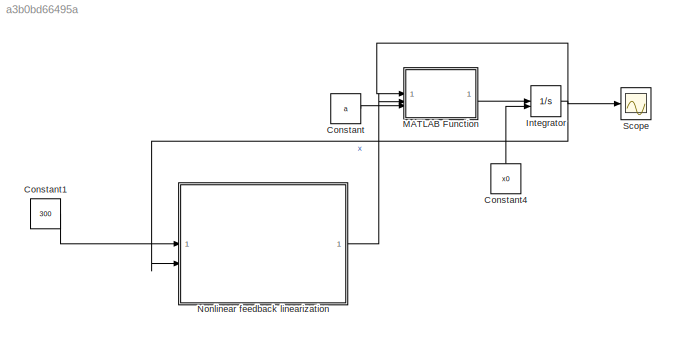
MODEL slx_a3b0bd66495a
KIND model
CONFIG AbsTol = auto
CONFIG EnableMultiTasking = off
CONFIG FixedStep = 0.001
CONFIG MaxStep = auto
CONFIG MinStep = auto
CONFIG RelTol = 1e-3
CONFIG SampleTimeConstraint = Unconstrained
CONFIG SolverName = FixedStepAuto
CONFIG StartTime = 0.0
CONFIG StopTime = 15
BLOCK [Constant] Constant
  Value = a
BLOCK [Constant] Constant1
  Value = 300
BLOCK [Constant] Constant4
  NameLocation = right
  Value = x0
BLOCK [Integrator] Integrator
  InitialConditionSource = external
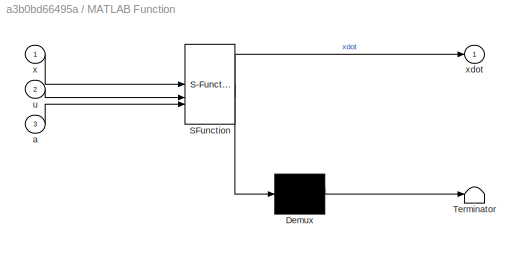
BLOCK [SubSystem] MATLAB Function
  ErrorFcn = Stateflow.Translate.translate
  PermitHierarchicalResolution = ExplicitOnly
  SFBlockType = MATLAB Function
  TreatAsAtomicUnit = on
BLOCK [Demux] MATLAB Function/ Demux 
  Outputs = 1
BLOCK [S-Function] MATLAB Function/ SFunction 
  EnableBusSupport = on
  FunctionName = sf_sfun
  PortCounts = [3 2]
  SFcnIsStateOwnerBlock = off
  SFunctionDeploymentMode = off
  Tag = Stateflow S-Function 2
BLOCK [Terminator] MATLAB Function/ Terminator 
BLOCK [Inport] MATLAB Function/a
  Port = 3
BLOCK [Inport] MATLAB Function/u
  Port = 2
BLOCK [Inport] MATLAB Function/x
BLOCK [Outport] MATLAB Function/xdot
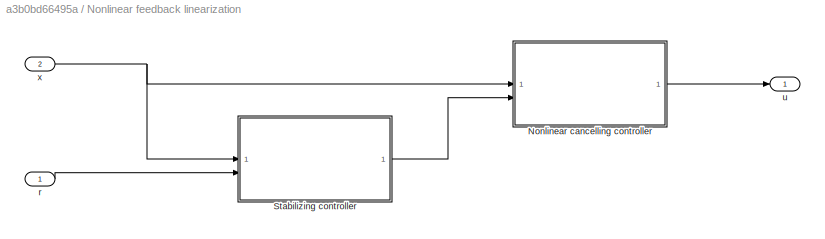
BLOCK [SubSystem] Nonlinear feedback linearization
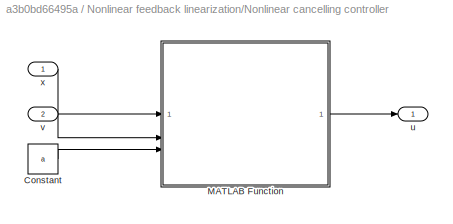
BLOCK [SubSystem] Nonlinear feedback linearization/Nonlinear cancelling controller
BLOCK [Constant] Nonlinear feedback linearization/Nonlinear cancelling controller/Constant
  Value = a
  VectorParams1D = off
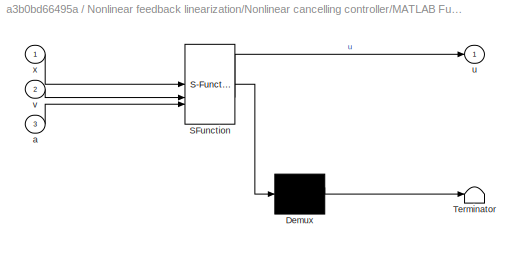
BLOCK [SubSystem] Nonlinear feedback linearization/Nonlinear cancelling controller/MATLAB Function
  ErrorFcn = Stateflow.Translate.translate
  PermitHierarchicalResolution = ExplicitOnly
  SFBlockType = MATLAB Function
  TreatAsAtomicUnit = on
BLOCK [Demux] Nonlinear feedback linearization/Nonlinear cancelling controller/MATLAB Function/ Demux 
  Outputs = 1
BLOCK [S-Function] Nonlinear feedback linearization/Nonlinear cancelling controller/MATLAB Function/ SFunction 
  EnableBusSupport = on
  FunctionName = sf_sfun
  PortCounts = [3 2]
  SFcnIsStateOwnerBlock = off
  SFunctionDeploymentMode = off
  Tag = Stateflow S-Function 1
BLOCK [Terminator] Nonlinear feedback linearization/Nonlinear cancelling controller/MATLAB Function/ Terminator 
BLOCK [Inport] Nonlinear feedback linearization/Nonlinear cancelling controller/MATLAB Function/a
  Port = 3
BLOCK [Outport] Nonlinear feedback linearization/Nonlinear cancelling controller/MATLAB Function/u
BLOCK [Inport] Nonlinear feedback linearization/Nonlinear cancelling controller/MATLAB Function/v
  Port = 2
BLOCK [Inport] Nonlinear feedback linearization/Nonlinear cancelling controller/MATLAB Function/x
BLOCK [Outport] Nonlinear feedback linearization/Nonlinear cancelling controller/u
BLOCK [Inport] Nonlinear feedback linearization/Nonlinear cancelling controller/v
  Port = 2
BLOCK [Inport] Nonlinear feedback linearization/Nonlinear cancelling controller/x
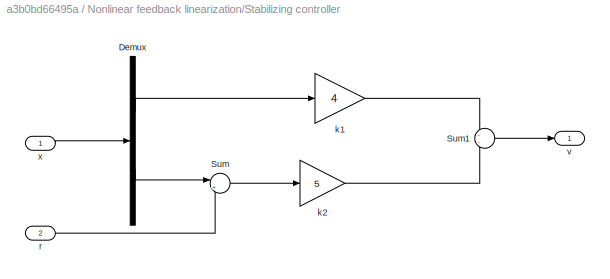
BLOCK [SubSystem] Nonlinear feedback linearization/Stabilizing controller
BLOCK [Demux] Nonlinear feedback linearization/Stabilizing controller/Demux
  Outputs = 2
BLOCK [Sum] Nonlinear feedback linearization/Stabilizing controller/Sum
  Inputs = |+-
BLOCK [Sum] Nonlinear feedback linearization/Stabilizing controller/Sum1
  Inputs = --
BLOCK [Gain] Nonlinear feedback linearization/Stabilizing controller/k1
  Gain = 4
BLOCK [Gain] Nonlinear feedback linearization/Stabilizing controller/k2
  Gain = 5
BLOCK [Inport] Nonlinear feedback linearization/Stabilizing controller/r
  Port = 2
BLOCK [Outport] Nonlinear feedback linearization/Stabilizing controller/v
BLOCK [Inport] Nonlinear feedback linearization/Stabilizing controller/x
BLOCK [Inport] Nonlinear feedback linearization/r
BLOCK [Outport] Nonlinear feedback linearization/u
BLOCK [Inport] Nonlinear feedback linearization/x
  Port = 2
BLOCK [Scope] Scope
  Floating = off
  NumInputPorts = 1
  ScopeSpecificationString = Simulink.scopes.TimeScopeBlockCfg('CurrentConfiguration', extmgr.ConfigurationSet(extmgr.Configuration('Core','General UI',true),extmgr.Configuration('Core','Source UI',true),extmgr.Configuration('Sources','WiredSimulink',true,'DataLoggingVariableName','ScopeData1'),extmgr.Configuration('Visuals','Time Domain',true,'SerializedDisplays',{struct('MinYLimReal','-34.87539','MaxYLimReal','333.87853','Y...<+1408ch>
LINE Constant1:1 -> Nonlinear feedback linearization:1
LINE Constant4:1 -> Integrator:2
LINE Constant:1 -> MATLAB Function:3
NET Integrator:1 -> MATLAB Function:1, Nonlinear feedback linearization:2, Scope:1
LINE MATLAB Function:1 -> Integrator:1
LINE Nonlinear feedback linearization/Nonlinear cancelling controller/Constant:1 -> Nonlinear feedback linearization/Nonlinear cancelling controller/MATLAB Function:3
LINE Nonlinear feedback linearization/Nonlinear cancelling controller/MATLAB Function:1 -> Nonlinear feedback linearization/Nonlinear cancelling controller/u:1
LINE Nonlinear feedback linearization/Nonlinear cancelling controller/v:1 -> Nonlinear feedback linearization/Nonlinear cancelling controller/MATLAB Function:2
LINE Nonlinear feedback linearization/Nonlinear cancelling controller/x:1 -> Nonlinear feedback linearization/Nonlinear cancelling controller/MATLAB Function:1
LINE Nonlinear feedback linearization/Nonlinear cancelling controller:1 -> Nonlinear feedback linearization/u:1
LINE Nonlinear feedback linearization/Stabilizing controller/Demux:1 -> Nonlinear feedback linearization/Stabilizing controller/k1:1
LINE Nonlinear feedback linearization/Stabilizing controller/Demux:2 -> Nonlinear feedback linearization/Stabilizing controller/Sum:1
LINE Nonlinear feedback linearization/Stabilizing controller/Sum1:1 -> Nonlinear feedback linearization/Stabilizing controller/v:1
LINE Nonlinear feedback linearization/Stabilizing controller/Sum:1 -> Nonlinear feedback linearization/Stabilizing controller/k2:1
LINE Nonlinear feedback linearization/Stabilizing controller/k1:1 -> Nonlinear feedback linearization/Stabilizing controller/Sum1:1
LINE Nonlinear feedback linearization/Stabilizing controller/k2:1 -> Nonlinear feedback linearization/Stabilizing controller/Sum1:2
LINE Nonlinear feedback linearization/Stabilizing controller/r:1 -> Nonlinear feedback linearization/Stabilizing controller/Sum:2
LINE Nonlinear feedback linearization/Stabilizing controller/x:1 -> Nonlinear feedback linearization/Stabilizing controller/Demux:1
LINE Nonlinear feedback linearization/Stabilizing controller:1 -> Nonlinear feedback linearization/Nonlinear cancelling controller:2
LINE Nonlinear feedback linearization/r:1 -> Nonlinear feedback linearization/Stabilizing controller:2
NET Nonlinear feedback linearization/x:1 -> Nonlinear feedback linearization/Nonlinear cancelling controller:1, Nonlinear feedback linearization/Stabilizing controller:1
LINE Nonlinear feedback linearization:1 -> MATLAB Function:2
note: NET lines group one-source signal fan-out (src -> all destinations, sorted); 1:1 wires keep LINE
CHART Nonlinear feedback linearization/Nonlinear cancelling controller/MATLAB Function states=1 transitions=1
  STATE_LABEL 'eML_blk_kernel()'
  STATE_LABEL 'SCRIPT:\nfunction u = c_lin(x,v,a)\n\n% a is the vector of constant parameters\nq1 = a(1);\n\n% cancelling controller\nu = q1*x(1)*x(2) + v;\n\n\n'
CHART MATLAB Function states=1 transitions=1
  STATE_LABEL 'eML_blk_kernel()'
  STATE_LABEL 'SCRIPT:\nfunction xdot = fcn(x,u, a)\n\nq1 = a(1);\nq2 = a(2);\nq3 = a(3);\nJ = a(4);\n\n\nxdot = [-q1 * x(2) * x(1) + u; \n        q2/J * x(1) - q3/J * x(2)];\n'
CHART  states=0 transitions=0
CHART  states=0 transitions=0
